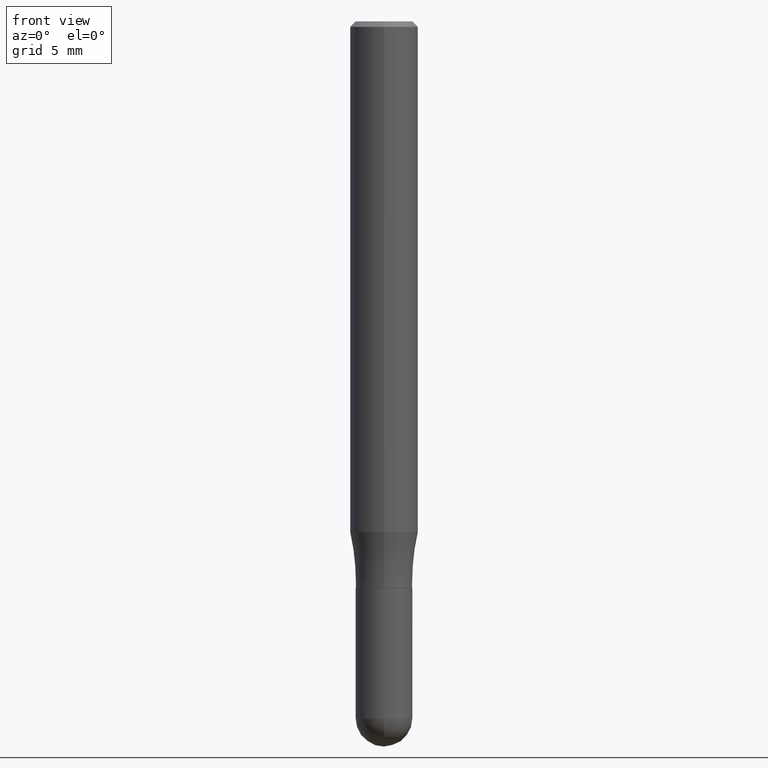
[diagram: clean part render]
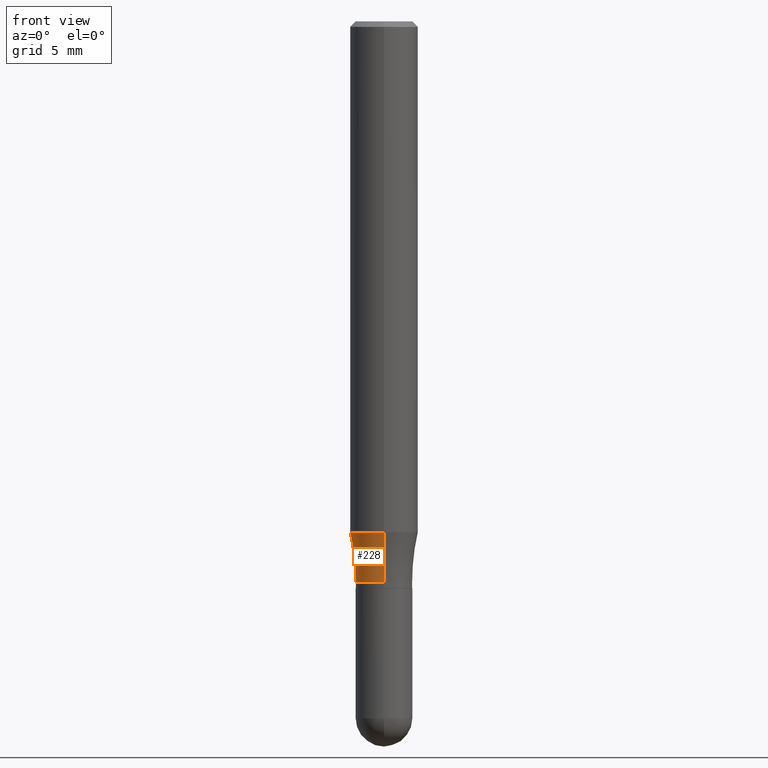
[diagram: same view with one face highlighted and labeled with its STEP entity id]
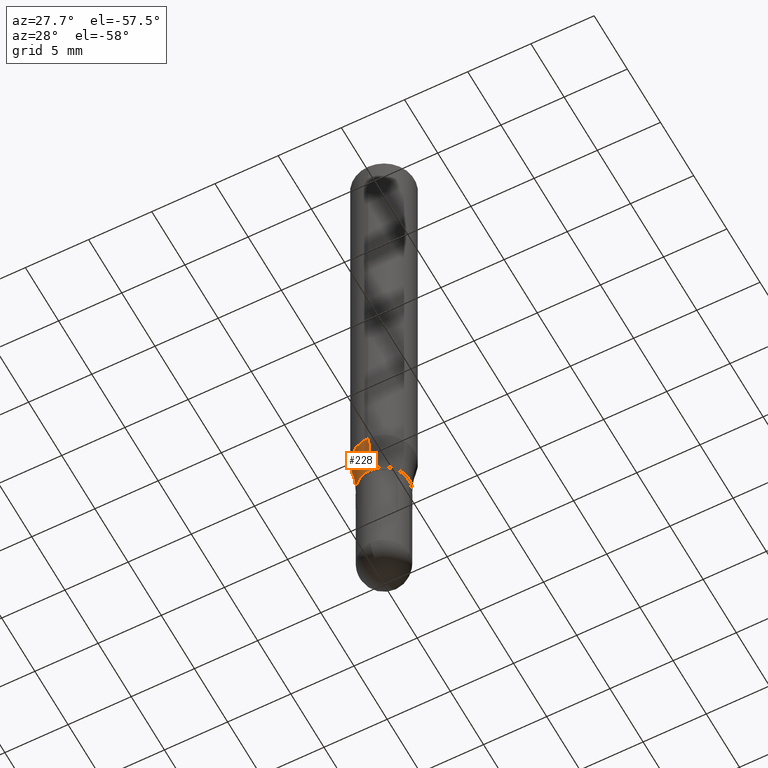
[diagram: same view with one face highlighted and labeled with its STEP entity id]
A machine part, front view. The second image highlights one B-rep face of the part: STEP entity #228.
A second angle (auxiliary view) of the same face is appended — the face is thin or edge-on in the first view.
In plain terms, the highlighted toroidal blend (fillet) surface has major radius 17.8587 mm and minor (blend) radius 15.875 mm.
Its self-contained STEP definition (entity closure, byte-faithful):
#8 = AXIS2_PLACEMENT_3D ( 'NONE', #226, #345, #483 ) ;
#43 = CARTESIAN_POINT ( 'NONE',  ( 4.995825975129299531E-15, 0.7030999999999942851, -1.548000000000002485 ) ) ;
#62 = CARTESIAN_POINT ( 'NONE',  ( 3.790053227955885371E-29, -5.398415375368757676E-15, -1.548000000000000043 ) ) ;
#64 = DIRECTION ( 'NONE',  ( 7.105427357600999492E-15, 1.000000000000000000, 0.000000000000000000 ) ) ;
#74 = VERTEX_POINT ( 'NONE', #173 ) ;
#96 = AXIS2_PLACEMENT_3D ( 'NONE', #485, #449, #451 ) ;
#108 = AXIS2_PLACEMENT_3D ( 'NONE', #62, #426, #417 ) ;
#130 = EDGE_CURVE ( 'NONE', #250, #454, #455, .T. ) ;
#153 = CIRCLE ( 'NONE', #181, 0.6250000000000001110 ) ;
#160 = VERTEX_POINT ( 'NONE', #393 ) ;
#173 = CARTESIAN_POINT ( 'NONE',  ( 6.661338147751289300E-16, 0.09374999999999510114, -1.409012311696322239 ) ) ;
#181 = AXIS2_PLACEMENT_3D ( 'NONE', #43, #195, #64 ) ;
#193 = AXIS2_PLACEMENT_3D ( 'NONE', #489, #488, #487 ) ;
#195 = DIRECTION ( 'NONE',  ( 1.000000000000000000, -7.105427357601001070E-15, 4.926264895051544158E-29 ) ) ;
#215 = ORIENTED_EDGE ( 'NONE', *, *, #255, .F. ) ;
#226 = CARTESIAN_POINT ( 'NONE',  ( -4.909721058681173899E-15, -0.7031000000000052763, -1.547999999999997600 ) ) ;
#228 = ADVANCED_FACE ( 'NONE', ( #366 ), #388, .F. ) ;
#250 = VERTEX_POINT ( 'NONE', #444 ) ;
#255 = EDGE_CURVE ( 'NONE', #74, #250, #477, .T. ) ;
#269 = EDGE_LOOP ( 'NONE', ( #215, #285, #390, #452 ) ) ;
#285 = ORIENTED_EDGE ( 'NONE', *, *, #372, .T. ) ;
#345 = DIRECTION ( 'NONE',  ( -1.000000000000000000, 6.982962677686265922E-15, -4.883557194083112340E-29 ) ) ;
#366 = FACE_OUTER_BOUND ( 'NONE', #269, .T. ) ;
#372 = EDGE_CURVE ( 'NONE', #74, #160, #153, .T. ) ;
#388 = TOROIDAL_SURFACE ( 'NONE', #193, 0.7030999999999998362, 0.6250000000000000000 ) ;
#390 = ORIENTED_EDGE ( 'NONE', *, *, #398, .T. ) ;
#393 = CARTESIAN_POINT ( 'NONE',  ( 6.105338457019019877E-16, 0.07809999999999438225, -1.548000000000000265 ) ) ;
#398 = EDGE_CURVE ( 'NONE', #160, #454, #478, .T. ) ;
#417 = DIRECTION ( 'NONE',  ( -6.982962677686265922E-15, -1.000000000000000000, 3.497884755011870665E-15 ) ) ;
#421 = CARTESIAN_POINT ( 'NONE',  ( -5.453693851272578948E-16, -0.07810000000000516529, -1.547999999999999821 ) ) ;
#426 = DIRECTION ( 'NONE',  ( -2.448354798421115077E-29, 3.487348433700747315E-15, 1.000000000000000000 ) ) ;
#444 = CARTESIAN_POINT ( 'NONE',  ( -6.546527510330522026E-16, -0.09375000000000494049, -1.409012311696321795 ) ) ;
#449 = DIRECTION ( 'NONE',  ( -2.448354798421115077E-29, 3.487348433700747315E-15, 1.000000000000000000 ) ) ;
#451 = DIRECTION ( 'NONE',  ( -6.982962677686266711E-15, -1.000000000000000000, 2.913971193241881161E-15 ) ) ;
#452 = ORIENTED_EDGE ( 'NONE', *, *, #130, .F. ) ;
#454 = VERTEX_POINT ( 'NONE', #421 ) ;
#455 = CIRCLE ( 'NONE', #8, 0.6250000000000001110 ) ;
#477 = CIRCLE ( 'NONE', #96, 0.09374999999999998612 ) ;
#478 = CIRCLE ( 'NONE', #108, 0.07809999999999978071 ) ;
#483 = DIRECTION ( 'NONE',  ( -6.982962677686262766E-15, -1.000000000000000000, 0.000000000000000000 ) ) ;
#485 = CARTESIAN_POINT ( 'NONE',  ( 3.449762054376117352E-29, -4.913716878259238262E-15, -1.409012311696322017 ) ) ;
#487 = DIRECTION ( 'NONE',  ( -6.982962677686265922E-15, -1.000000000000000000, 3.487348433700747315E-15 ) ) ;
#488 = DIRECTION ( 'NONE',  ( -2.448354798421115077E-29, 3.487348433700747315E-15, 1.000000000000000000 ) ) ;
#489 = CARTESIAN_POINT ( 'NONE',  ( 3.785585711974591416E-29, -5.404813112529189619E-15, -1.548000000000000043 ) ) ;